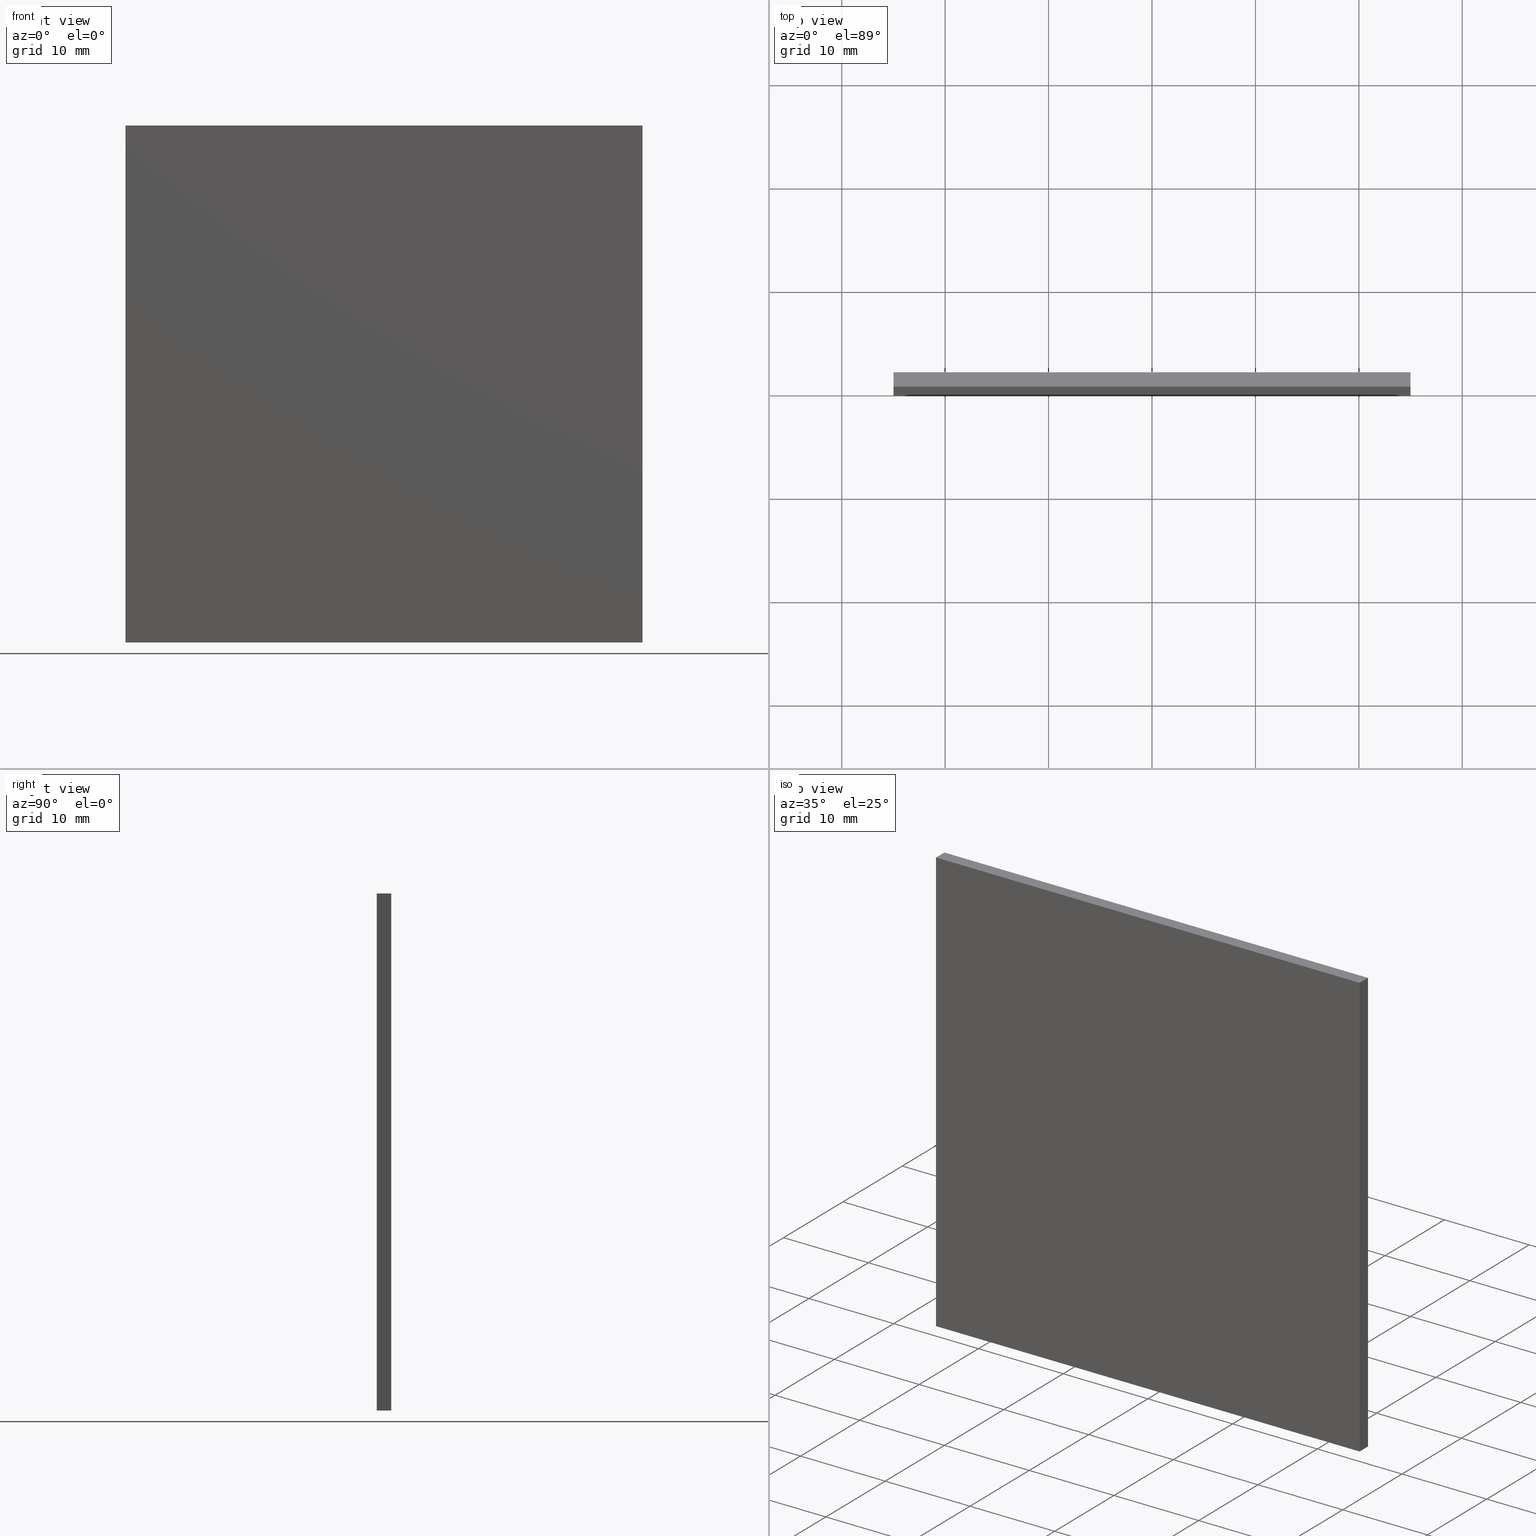
[diagram: canonical four-view strip — front | top / right | iso, engineering-drawing reading convention]
A machine part, canonical four-view strip (front | top / right | iso — engineering-drawing reading convention). The complete STEP part file that produces these views, byte-faithful:
ISO-10303-21;
HEADER;
FILE_DESCRIPTION (( 'STEP AP214' ),
    '1' );
FILE_NAME ('248615.STEP',
    '2019-08-06T06:39:43',
    ( 'user' ),
    ( '΢���й�' ),
    'SwSTEP 2.0',
    'SolidWorks 2016',
    '' );
FILE_SCHEMA (( 'AUTOMOTIVE_DESIGN' ));
ENDSEC;

DATA;
#1 = STYLED_ITEM ( 'NONE', ( #20 ), #27 ) ;
#2 = LINE ( 'NONE', #22, #84 ) ;
#3 = ORIENTED_EDGE ( 'NONE', *, *, #33, .F. ) ;
#4 = FACE_OUTER_BOUND ( 'NONE', #55, .T. ) ;
#5 = VECTOR ( 'NONE', #168, 1000.000000000000000 ) ;
#6 = CARTESIAN_POINT ( 'NONE',  ( -25.00000000000000400, 0.0000000000000000000, 24.99999999999999600 ) ) ;
#7 = PRODUCT_DEFINITION_CONTEXT ( 'detailed design', #104, 'design' ) ;
#8 =( LENGTH_UNIT ( ) NAMED_UNIT ( * ) SI_UNIT ( .MILLI., .METRE. ) );
#9 = LINE ( 'NONE', #187, #42 ) ;
#10 = CLOSED_SHELL ( 'NONE', ( #192, #63, #106, #125, #171, #49 ) ) ;
#11 = CARTESIAN_POINT ( 'NONE',  ( -25.00000000000000400, 1.399999999999999900, -25.00000000000000400 ) ) ;
#12 = AXIS2_PLACEMENT_3D ( 'NONE', #181, #29, #185 ) ;
#13 = FILL_AREA_STYLE_COLOUR ( '', #98 ) ;
#14 = ORIENTED_EDGE ( 'NONE', *, *, #169, .T. ) ;
#15 = VECTOR ( 'NONE', #136, 1000.000000000000000 ) ;
#16 = DIRECTION ( 'NONE',  ( -1.000000000000000000, 0.0000000000000000000, -0.0000000000000000000 ) ) ;
#17 = DIRECTION ( 'NONE',  ( 0.0000000000000000000, 0.0000000000000000000, -1.000000000000000000 ) ) ;
#18 = ORIENTED_EDGE ( 'NONE', *, *, #133, .F. ) ;
#19 = VERTEX_POINT ( 'NONE', #200 ) ;
#20 = PRESENTATION_STYLE_ASSIGNMENT (( #149 ) ) ;
#21 = PLANE ( 'NONE',  #177 ) ;
#22 = CARTESIAN_POINT ( 'NONE',  ( -25.00000000000000400, 1.399999999999999900, 24.99999999999999600 ) ) ;
#23 = ORIENTED_EDGE ( 'NONE', *, *, #153, .T. ) ;
#24 =( LENGTH_UNIT ( ) NAMED_UNIT ( * ) SI_UNIT ( .MILLI., .METRE. ) );
#25 = DIRECTION ( 'NONE',  ( 1.000000000000000000, 0.0000000000000000000, 0.0000000000000000000 ) ) ;
#26 = DIRECTION ( 'NONE',  ( 0.0000000000000000000, -0.0000000000000000000, -1.000000000000000000 ) ) ;
#27 = MANIFOLD_SOLID_BREP ( '͹̨-����1', #10 ) ;
#28 = DIRECTION ( 'NONE',  ( 0.0000000000000000000, 0.0000000000000000000, 1.000000000000000000 ) ) ;
#29 = DIRECTION ( 'NONE',  ( 0.0000000000000000000, 0.0000000000000000000, 1.000000000000000000 ) ) ;
#30 = EDGE_LOOP ( 'NONE', ( #90, #47, #108, #122 ) ) ;
#31 = PLANE ( 'NONE',  #172 ) ;
#32 = VECTOR ( 'NONE', #186, 1000.000000000000000 ) ;
#33 = EDGE_CURVE ( 'NONE', #148, #19, #159, .T. ) ;
#34 = FACE_OUTER_BOUND ( 'NONE', #96, .T. ) ;
#35 = ORIENTED_EDGE ( 'NONE', *, *, #82, .F. ) ;
#36 = PLANE ( 'NONE',  #52 ) ;
#37 = DIRECTION ( 'NONE',  ( 0.0000000000000000000, 0.0000000000000000000, -1.000000000000000000 ) ) ;
#38 =( GEOMETRIC_REPRESENTATION_CONTEXT ( 3 ) GLOBAL_UNCERTAINTY_ASSIGNED_CONTEXT ( ( #44 ) ) GLOBAL_UNIT_ASSIGNED_CONTEXT ( ( #24, #160, #56 ) ) REPRESENTATION_CONTEXT ( 'NONE', 'WORKASPACE' ) );
#39 = DIRECTION ( 'NONE',  ( 1.000000000000000000, -0.0000000000000000000, 0.0000000000000000000 ) ) ;
#40 = PLANE ( 'NONE',  #64 ) ;
#41 = DIRECTION ( 'NONE',  ( 0.0000000000000000000, 0.0000000000000000000, 1.000000000000000000 ) ) ;
#42 = VECTOR ( 'NONE', #76, 1000.000000000000000 ) ;
#43 = ORIENTED_EDGE ( 'NONE', *, *, #48, .F. ) ;
#44 = UNCERTAINTY_MEASURE_WITH_UNIT (LENGTH_MEASURE( 1.000000000000000100E-005 ), #24, 'distance_accuracy_value', 'NONE');
#45 =( NAMED_UNIT ( * ) SI_UNIT ( $, .STERADIAN. ) SOLID_ANGLE_UNIT ( ) );
#46 = CARTESIAN_POINT ( 'NONE',  ( -25.00000000000000400, 1.399999999999999900, 24.99999999999999600 ) ) ;
#47 = ORIENTED_EDGE ( 'NONE', *, *, #119, .F. ) ;
#48 = EDGE_CURVE ( 'NONE', #74, #69, #2, .T. ) ;
#49 = ADVANCED_FACE ( 'NONE', ( #199 ), #36, .T. ) ;
#50 = PRESENTATION_STYLE_ASSIGNMENT (( #123 ) ) ;
#51 = PRODUCT_RELATED_PRODUCT_CATEGORY ( 'part', '', ( #184 ) ) ;
#52 = AXIS2_PLACEMENT_3D ( 'NONE', #188, #145, #26 ) ;
#53 = EDGE_LOOP ( 'NONE', ( #176, #35, #113, #154 ) ) ;
#54 =( GEOMETRIC_REPRESENTATION_CONTEXT ( 3 ) GLOBAL_UNCERTAINTY_ASSIGNED_CONTEXT ( ( #195 ) ) GLOBAL_UNIT_ASSIGNED_CONTEXT ( ( #198, #162, #45 ) ) REPRESENTATION_CONTEXT ( 'NONE', 'WORKASPACE' ) );
#55 = EDGE_LOOP ( 'NONE', ( #60, #89, #109, #173 ) ) ;
#56 =( NAMED_UNIT ( * ) SI_UNIT ( $, .STERADIAN. ) SOLID_ANGLE_UNIT ( ) );
#57 = DIRECTION ( 'NONE',  ( 1.000000000000000000, 0.0000000000000000000, -0.0000000000000000000 ) ) ;
#58 = DIRECTION ( 'NONE',  ( 0.0000000000000000000, 0.0000000000000000000, -1.000000000000000000 ) ) ;
#59 = LINE ( 'NONE', #165, #5 ) ;
#60 = ORIENTED_EDGE ( 'NONE', *, *, #119, .T. ) ;
#61 = DIRECTION ( 'NONE',  ( 0.0000000000000000000, 0.0000000000000000000, -1.000000000000000000 ) ) ;
#62 = PRODUCT_CONTEXT ( 'NONE', #201, 'mechanical' ) ;
#63 = ADVANCED_FACE ( 'NONE', ( #34 ), #196, .F. ) ;
#64 = AXIS2_PLACEMENT_3D ( 'NONE', #151, #17, #16 ) ;
#65 = ORIENTED_EDGE ( 'NONE', *, *, #133, .T. ) ;
#66 = EDGE_CURVE ( 'NONE', #19, #158, #9, .T. ) ;
#67 = LINE ( 'NONE', #147, #15 ) ;
#68 = VECTOR ( 'NONE', #124, 1000.000000000000000 ) ;
#69 = VERTEX_POINT ( 'NONE', #85 ) ;
#70 = CARTESIAN_POINT ( 'NONE',  ( -25.00000000000000400, 1.399999999999999900, 24.99999999999999600 ) ) ;
#71 = CARTESIAN_POINT ( 'NONE',  ( 24.99999999999999600, 1.399999999999999900, 24.99999999999999600 ) ) ;
#72 = MECHANICAL_DESIGN_GEOMETRIC_PRESENTATION_REPRESENTATION (  '', ( #175 ), #38 ) ;
#73 = ORIENTED_EDGE ( 'NONE', *, *, #33, .T. ) ;
#74 = VERTEX_POINT ( 'NONE', #70 ) ;
#75 = SHAPE_DEFINITION_REPRESENTATION ( #78, #91 ) ;
#76 = DIRECTION ( 'NONE',  ( -0.0000000000000000000, -1.000000000000000000, -0.0000000000000000000 ) ) ;
#77 = VERTEX_POINT ( 'NONE', #152 ) ;
#78 = PRODUCT_DEFINITION_SHAPE ( 'NONE', 'NONE',  #130 ) ;
#79 = AXIS2_PLACEMENT_3D ( 'NONE', #121, #41, #57 ) ;
#80 = LINE ( 'NONE', #103, #68 ) ;
#81 = AXIS2_PLACEMENT_3D ( 'NONE', #83, #197, #161 ) ;
#82 = EDGE_CURVE ( 'NONE', #148, #156, #59, .T. ) ;
#83 = CARTESIAN_POINT ( 'NONE',  ( 0.0000000000000000000, 1.399999999999999900, 0.0000000000000000000 ) ) ;
#84 = VECTOR ( 'NONE', #146, 1000.000000000000000 ) ;
#85 = CARTESIAN_POINT ( 'NONE',  ( -25.00000000000000400, 0.0000000000000000000, 24.99999999999999600 ) ) ;
#86 = DIRECTION ( 'NONE',  ( -1.000000000000000000, 0.0000000000000000000, 0.0000000000000000000 ) ) ;
#87 =( NAMED_UNIT ( * ) PLANE_ANGLE_UNIT ( ) SI_UNIT ( $, .RADIAN. ) );
#88 = LINE ( 'NONE', #189, #100 ) ;
#89 = ORIENTED_EDGE ( 'NONE', *, *, #128, .F. ) ;
#90 = ORIENTED_EDGE ( 'NONE', *, *, #111, .F. ) ;
#91 = ADVANCED_BREP_SHAPE_REPRESENTATION ( '248615', ( #27, #12 ), #54 ) ;
#92 = FACE_OUTER_BOUND ( 'NONE', #107, .T. ) ;
#93 =( NAMED_UNIT ( * ) SI_UNIT ( $, .STERADIAN. ) SOLID_ANGLE_UNIT ( ) );
#94 = SURFACE_STYLE_FILL_AREA ( #117 ) ;
#95 = CARTESIAN_POINT ( 'NONE',  ( 24.99999999999999600, 1.399999999999999900, 24.99999999999999600 ) ) ;
#96 = EDGE_LOOP ( 'NONE', ( #183, #134, #3, #140 ) ) ;
#97 = EDGE_CURVE ( 'NONE', #158, #69, #102, .T. ) ;
#98 = COLOUR_RGB ( '',1.000000000000000000, 1.000000000000000000, 1.000000000000000000 ) ;
#99 = FILL_AREA_STYLE ('',( #138 ) ) ;
#100 = VECTOR ( 'NONE', #114, 1000.000000000000000 ) ;
#101 = EDGE_LOOP ( 'NONE', ( #14, #73, #65, #23 ) ) ;
#102 = LINE ( 'NONE', #150, #32 ) ;
#103 = CARTESIAN_POINT ( 'NONE',  ( -25.00000000000000400, 1.399999999999999900, 24.99999999999999600 ) ) ;
#104 = APPLICATION_CONTEXT ( 'automotive_design' ) ;
#105 = CARTESIAN_POINT ( 'NONE',  ( 24.99999999999999600, 0.0000000000000000000, 24.99999999999999600 ) ) ;
#106 = ADVANCED_FACE ( 'NONE', ( #92 ), #31, .F. ) ;
#107 = EDGE_LOOP ( 'NONE', ( #179, #43, #18, #191 ) ) ;
#108 = ORIENTED_EDGE ( 'NONE', *, *, #97, .F. ) ;
#109 = ORIENTED_EDGE ( 'NONE', *, *, #153, .F. ) ;
#110 = FACE_OUTER_BOUND ( 'NONE', #53, .T. ) ;
#111 = EDGE_CURVE ( 'NONE', #77, #156, #118, .T. ) ;
#112 = VECTOR ( 'NONE', #115, 1000.000000000000000 ) ;
#113 = ORIENTED_EDGE ( 'NONE', *, *, #169, .F. ) ;
#114 = DIRECTION ( 'NONE',  ( -1.000000000000000000, -0.0000000000000000000, -0.0000000000000000000 ) ) ;
#115 = DIRECTION ( 'NONE',  ( -0.0000000000000000000, -1.000000000000000000, -0.0000000000000000000 ) ) ;
#116 =( GEOMETRIC_REPRESENTATION_CONTEXT ( 3 ) GLOBAL_UNCERTAINTY_ASSIGNED_CONTEXT ( ( #155 ) ) GLOBAL_UNIT_ASSIGNED_CONTEXT ( ( #8, #87, #93 ) ) REPRESENTATION_CONTEXT ( 'NONE', 'WORKASPACE' ) );
#117 = FILL_AREA_STYLE ('',( #13 ) ) ;
#118 = LINE ( 'NONE', #105, #132 ) ;
#119 = EDGE_CURVE ( 'NONE', #69, #77, #126, .T. ) ;
#120 = SURFACE_SIDE_STYLE ('',( #94 ) ) ;
#121 = CARTESIAN_POINT ( 'NONE',  ( -25.00000000000000400, 1.399999999999999900, -25.00000000000000400 ) ) ;
#122 = ORIENTED_EDGE ( 'NONE', *, *, #139, .F. ) ;
#123 = SURFACE_STYLE_USAGE ( .BOTH. , #120 ) ;
#124 = DIRECTION ( 'NONE',  ( -0.0000000000000000000, -0.0000000000000000000, 1.000000000000000000 ) ) ;
#125 = ADVANCED_FACE ( 'NONE', ( #4 ), #40, .F. ) ;
#126 = LINE ( 'NONE', #6, #129 ) ;
#127 = PRESENTATION_LAYER_ASSIGNMENT (  '', '', ( #1 ) ) ;
#128 = EDGE_CURVE ( 'NONE', #193, #77, #170, .T. ) ;
#129 = VECTOR ( 'NONE', #25, 1000.000000000000000 ) ;
#130 = PRODUCT_DEFINITION ( 'δ֪', '', #144, #7 ) ;
#131 = VECTOR ( 'NONE', #164, 1000.000000000000000 ) ;
#132 = VECTOR ( 'NONE', #61, 1000.000000000000000 ) ;
#133 = EDGE_CURVE ( 'NONE', #19, #74, #80, .T. ) ;
#134 = ORIENTED_EDGE ( 'NONE', *, *, #66, .F. ) ;
#135 = APPLICATION_PROTOCOL_DEFINITION ( 'draft international standard', 'automotive_design', 1998, #201 ) ;
#136 = DIRECTION ( 'NONE',  ( 1.000000000000000000, 0.0000000000000000000, 0.0000000000000000000 ) ) ;
#137 = PLANE ( 'NONE',  #81 ) ;
#138 = FILL_AREA_STYLE_COLOUR ( '', #142 ) ;
#139 = EDGE_CURVE ( 'NONE', #156, #158, #88, .T. ) ;
#140 = ORIENTED_EDGE ( 'NONE', *, *, #82, .T. ) ;
#141 = PRESENTATION_LAYER_ASSIGNMENT (  '', '', ( #175 ) ) ;
#142 = COLOUR_RGB ( '',1.000000000000000000, 1.000000000000000000, 1.000000000000000000 ) ;
#143 = FACE_OUTER_BOUND ( 'NONE', #101, .T. ) ;
#144 = PRODUCT_DEFINITION_FORMATION_WITH_SPECIFIED_SOURCE ( '�κ�', '', #184, .NOT_KNOWN. ) ;
#145 = DIRECTION ( 'NONE',  ( 0.0000000000000000000, -1.000000000000000000, 0.0000000000000000000 ) ) ;
#146 = DIRECTION ( 'NONE',  ( -0.0000000000000000000, -1.000000000000000000, -0.0000000000000000000 ) ) ;
#147 = CARTESIAN_POINT ( 'NONE',  ( -25.00000000000000400, 1.399999999999999900, 24.99999999999999600 ) ) ;
#148 = VERTEX_POINT ( 'NONE', #182 ) ;
#149 = SURFACE_STYLE_USAGE ( .BOTH. , #190 ) ;
#150 = CARTESIAN_POINT ( 'NONE',  ( -25.00000000000000400, 0.0000000000000000000, 24.99999999999999600 ) ) ;
#151 = CARTESIAN_POINT ( 'NONE',  ( -25.00000000000000400, 1.399999999999999900, 24.99999999999999600 ) ) ;
#152 = CARTESIAN_POINT ( 'NONE',  ( 24.99999999999999600, 0.0000000000000000000, 24.99999999999999600 ) ) ;
#153 = EDGE_CURVE ( 'NONE', #74, #193, #67, .T. ) ;
#154 = ORIENTED_EDGE ( 'NONE', *, *, #128, .T. ) ;
#155 = UNCERTAINTY_MEASURE_WITH_UNIT (LENGTH_MEASURE( 1.000000000000000100E-005 ), #8, 'distance_accuracy_value', 'NONE');
#156 = VERTEX_POINT ( 'NONE', #178 ) ;
#157 = MECHANICAL_DESIGN_GEOMETRIC_PRESENTATION_REPRESENTATION (  '', ( #1 ), #116 ) ;
#158 = VERTEX_POINT ( 'NONE', #180 ) ;
#159 = LINE ( 'NONE', #11, #131 ) ;
#160 =( NAMED_UNIT ( * ) PLANE_ANGLE_UNIT ( ) SI_UNIT ( $, .RADIAN. ) );
#161 = DIRECTION ( 'NONE',  ( 0.0000000000000000000, -0.0000000000000000000, -1.000000000000000000 ) ) ;
#162 =( NAMED_UNIT ( * ) PLANE_ANGLE_UNIT ( ) SI_UNIT ( $, .RADIAN. ) );
#163 = SURFACE_STYLE_FILL_AREA ( #99 ) ;
#164 = DIRECTION ( 'NONE',  ( -1.000000000000000000, -0.0000000000000000000, -0.0000000000000000000 ) ) ;
#165 = CARTESIAN_POINT ( 'NONE',  ( 24.99999999999999600, 1.399999999999999900, -25.00000000000000400 ) ) ;
#166 = LINE ( 'NONE', #202, #174 ) ;
#167 = CARTESIAN_POINT ( 'NONE',  ( 24.99999999999999600, 1.399999999999999900, 24.99999999999999600 ) ) ;
#168 = DIRECTION ( 'NONE',  ( -0.0000000000000000000, -1.000000000000000000, -0.0000000000000000000 ) ) ;
#169 = EDGE_CURVE ( 'NONE', #193, #148, #166, .T. ) ;
#170 = LINE ( 'NONE', #167, #112 ) ;
#171 = ADVANCED_FACE ( 'NONE', ( #143 ), #137, .F. ) ;
#172 = AXIS2_PLACEMENT_3D ( 'NONE', #46, #39, #58 ) ;
#173 = ORIENTED_EDGE ( 'NONE', *, *, #48, .T. ) ;
#174 = VECTOR ( 'NONE', #37, 1000.000000000000000 ) ;
#175 = STYLED_ITEM ( 'NONE', ( #50 ), #91 ) ;
#176 = ORIENTED_EDGE ( 'NONE', *, *, #111, .T. ) ;
#177 = AXIS2_PLACEMENT_3D ( 'NONE', #71, #86, #28 ) ;
#178 = CARTESIAN_POINT ( 'NONE',  ( 24.99999999999999600, 0.0000000000000000000, -25.00000000000000400 ) ) ;
#179 = ORIENTED_EDGE ( 'NONE', *, *, #97, .T. ) ;
#180 = CARTESIAN_POINT ( 'NONE',  ( -25.00000000000000400, 0.0000000000000000000, -25.00000000000000400 ) ) ;
#181 = CARTESIAN_POINT ( 'NONE',  ( 0.0000000000000000000, 0.0000000000000000000, 0.0000000000000000000 ) ) ;
#182 = CARTESIAN_POINT ( 'NONE',  ( 24.99999999999999600, 1.399999999999999900, -25.00000000000000400 ) ) ;
#183 = ORIENTED_EDGE ( 'NONE', *, *, #139, .T. ) ;
#184 = PRODUCT ( '248615', '248615', '', ( #62 ) ) ;
#185 = DIRECTION ( 'NONE',  ( 1.000000000000000000, 0.0000000000000000000, 0.0000000000000000000 ) ) ;
#186 = DIRECTION ( 'NONE',  ( -0.0000000000000000000, -0.0000000000000000000, 1.000000000000000000 ) ) ;
#187 = CARTESIAN_POINT ( 'NONE',  ( -25.00000000000000400, 1.399999999999999900, -25.00000000000000400 ) ) ;
#188 = CARTESIAN_POINT ( 'NONE',  ( 0.0000000000000000000, 0.0000000000000000000, 0.0000000000000000000 ) ) ;
#189 = CARTESIAN_POINT ( 'NONE',  ( -25.00000000000000400, 0.0000000000000000000, -25.00000000000000400 ) ) ;
#190 = SURFACE_SIDE_STYLE ('',( #163 ) ) ;
#191 = ORIENTED_EDGE ( 'NONE', *, *, #66, .T. ) ;
#192 = ADVANCED_FACE ( 'NONE', ( #110 ), #21, .F. ) ;
#193 = VERTEX_POINT ( 'NONE', #95 ) ;
#194 = APPLICATION_PROTOCOL_DEFINITION ( 'draft international standard', 'automotive_design', 1998, #104 ) ;
#195 = UNCERTAINTY_MEASURE_WITH_UNIT (LENGTH_MEASURE( 1.000000000000000100E-005 ), #198, 'distance_accuracy_value', 'NONE');
#196 = PLANE ( 'NONE',  #79 ) ;
#197 = DIRECTION ( 'NONE',  ( 0.0000000000000000000, -1.000000000000000000, 0.0000000000000000000 ) ) ;
#198 =( LENGTH_UNIT ( ) NAMED_UNIT ( * ) SI_UNIT ( .MILLI., .METRE. ) );
#199 = FACE_OUTER_BOUND ( 'NONE', #30, .T. ) ;
#200 = CARTESIAN_POINT ( 'NONE',  ( -25.00000000000000400, 1.399999999999999900, -25.00000000000000400 ) ) ;
#201 = APPLICATION_CONTEXT ( 'automotive_design' ) ;
#202 = CARTESIAN_POINT ( 'NONE',  ( 24.99999999999999600, 1.399999999999999900, 24.99999999999999600 ) ) ;
ENDSEC;
END-ISO-10303-21;
